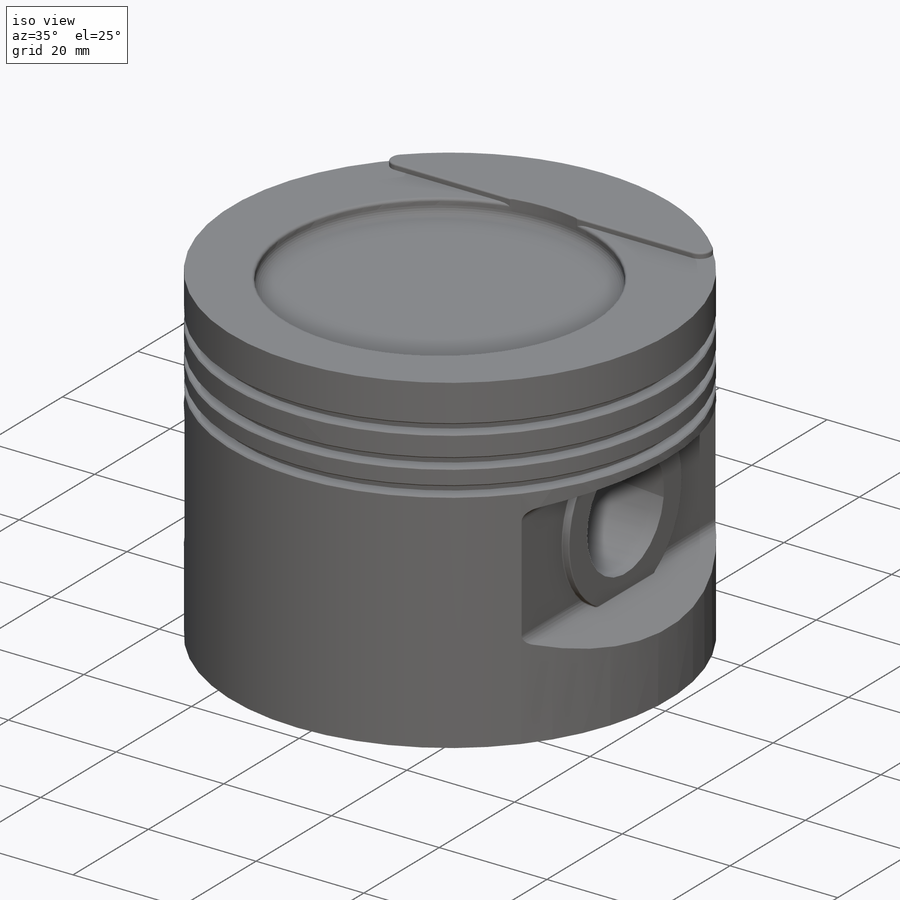
[diagram: iso view]
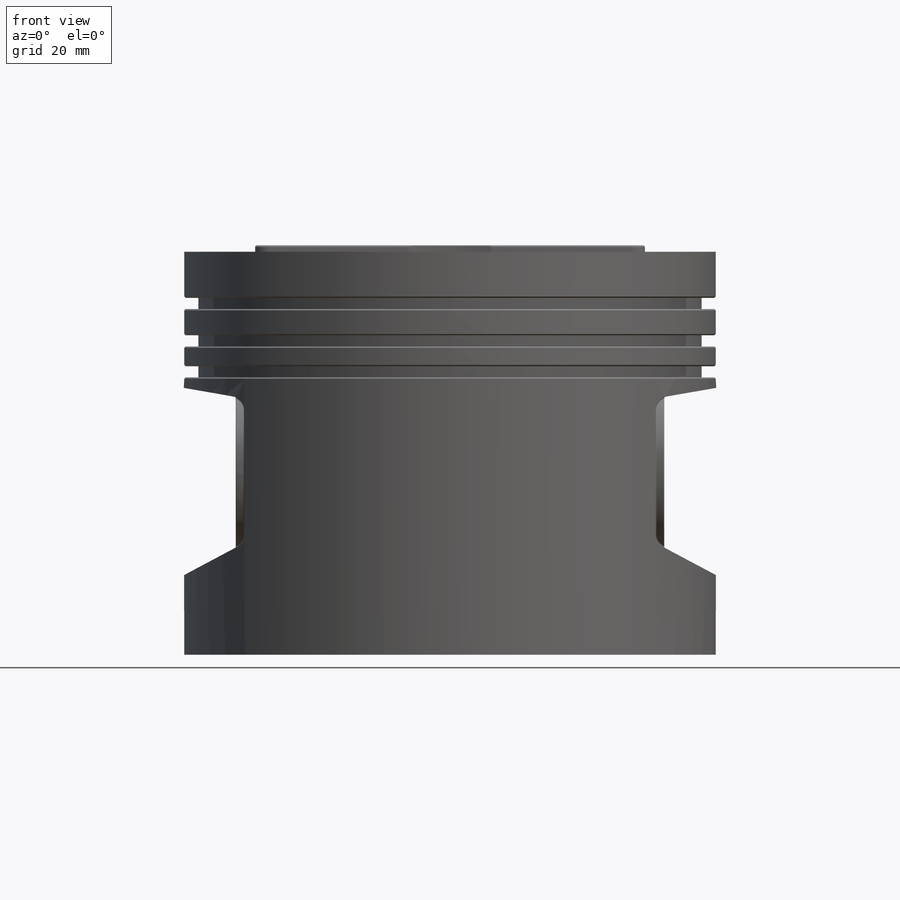
[diagram: front view]
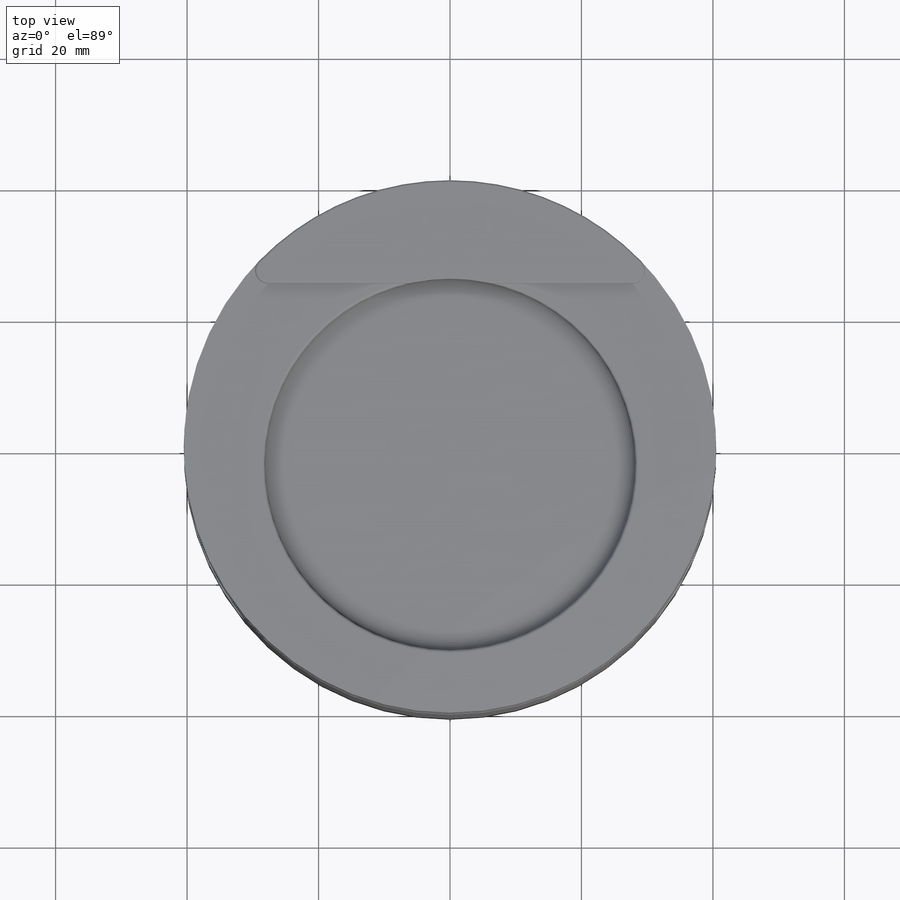
[diagram: top view]
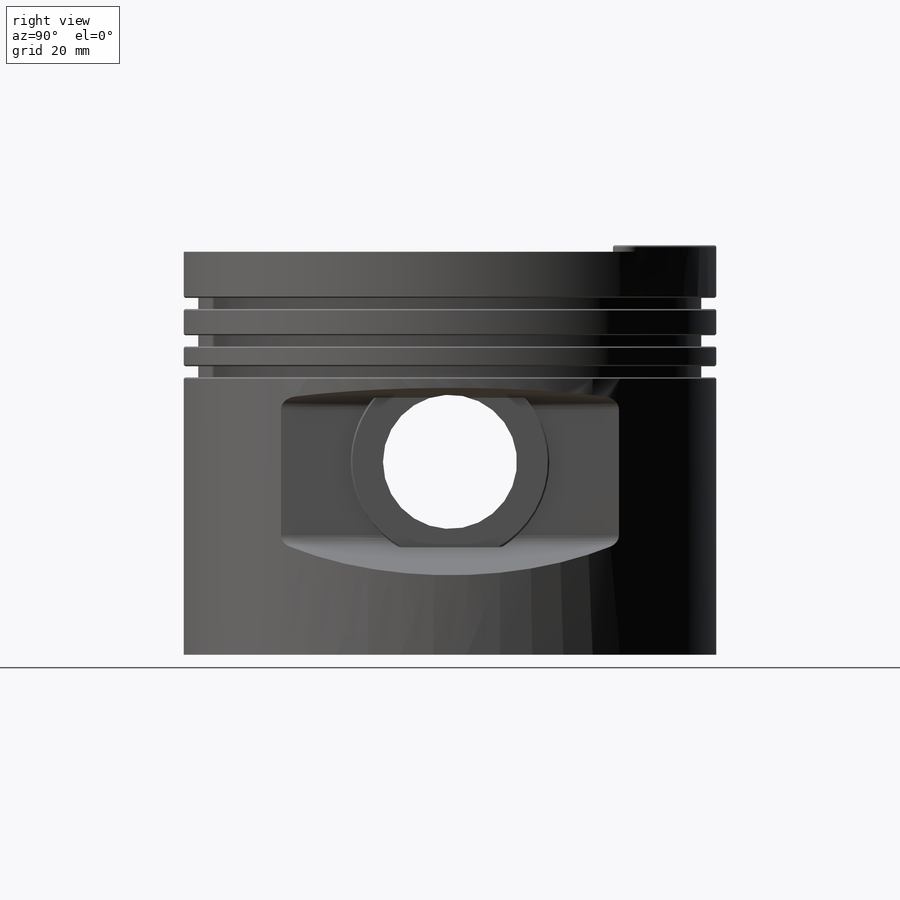
[diagram: right view]
SOLIDWORKS PART (.sldprt)
format: sldprt  version: not decoded by parser v0  size: 809,472 bytes
history: native  units: mm
features: sketch x12, fillet x7, extrude x5, cut_extrude x5, material x1, shell x1, cut_revolve x1, chamfer x1, mirror x1 (+11 scaffold rows collapsed)
feature tree (45):
  scaffold x11  (default folders/planes/origin — collapsed)
  material  "2024-T361"
  sketch  "Sketch1"  dims[D1=81.0mm]
  extrude  "Boss-Extrude1"  Depth=61.3mm
  sketch  "Sketch2"  dims[D1=3.8mm]
  sketch  "Sketch3"  dims[c1.D6=2.0mm c1.D1=12.1mm c1.D2=17.0mm c1.D3=9.2mm c1.D4=22.0mm c1.D5=28.5mm c2.D3=9.2mm]
  cut_extrude  "Cut-Extrude2"  Depth=91.5mm
  shell  "Shell1"  Thickness=2.7mm
  sketch  "Sketch4"  dims[c1.D3=20.4mm c1.D1=11.7mm c2.D3=20.4mm c2.D1=24.8mm c2.D2=11.7mm c3.D3=4.1mm c3.D2=23.5mm]
  cut_extrude  "Cut-Extrude3"  Depth=91.5mm
  sketch  "Sketch6"  dims[D1=7.0mm D2=1.7mm D3=2.2mm D4=4.0mm D5=2.2mm D6=1.7mm D7=1.7mm D8=2.2mm D9=3.0mm]
  cut_revolve  "Cut-Revolve1"  Angle=360deg
  sketch  "Sketch7"  dims[D1=9.6mm D2=15.0mm]
  cut_extrude  "Cut-Extrude4"  Depth=4.5mm
  sketch  "Sketch8"  dims[D1=0.0mm]
  extrude  "Boss-Extrude2"  Depth=7.1mm
  sketch  "Sketch10"  dims[D3=2.0mm D2=15.7mm D1=0.0mm]
  extrude  "Boss-Extrude3"  Depth=1mm
  fillet  "Fillet1"  Radius=0.5mm
  fillet  "Fillet2"  Radius=1.5mm
  fillet  "Fillet3"  Radius=0.3mm
  fillet  "Fillet4"  Radius=0.15mm
  chamfer  "Chamfer1"  Distance=0.2mm Angle=45deg
  sketch  "Sketch12"  dims[D1=20.4mm D2=28.0mm]
  extrude  "Boss-Extrude5"  [1 undecoded]
  cut_extrude  "Cut-Extrude5"  [1 undecoded]
  sketch  "Sketch3<2>"  dims[D1=88.7mm]
  sketch  "Sketch11"  dims[D1=30.0mm D2=10.2mm]
  extrude  "Boss-Extrude4"  Depth=1.3mm
  mirror  "Mirror2"
  fillet  "Fillet6"  Radius=0.15mm
  sketch  "Sketch13"  dims[D1=11.0mm D2=~35.247094mm D3=~17.301668mm]
  cut_extrude  "Cut-Extrude6"  [1 undecoded]
  fillet  "Fillet7"  Radius=8.15mm
  fillet  "Fillet8"  Radius=6mm
decode coverage: 29 of 33 modeling features carry decoded parameters
note: ~ marks probable driven/reference dimensions
note: 3 parameter values undecoded
summary: no parameter record found for 3 features
note: suppression state not decoded; provenance and decode notes live in map.json
